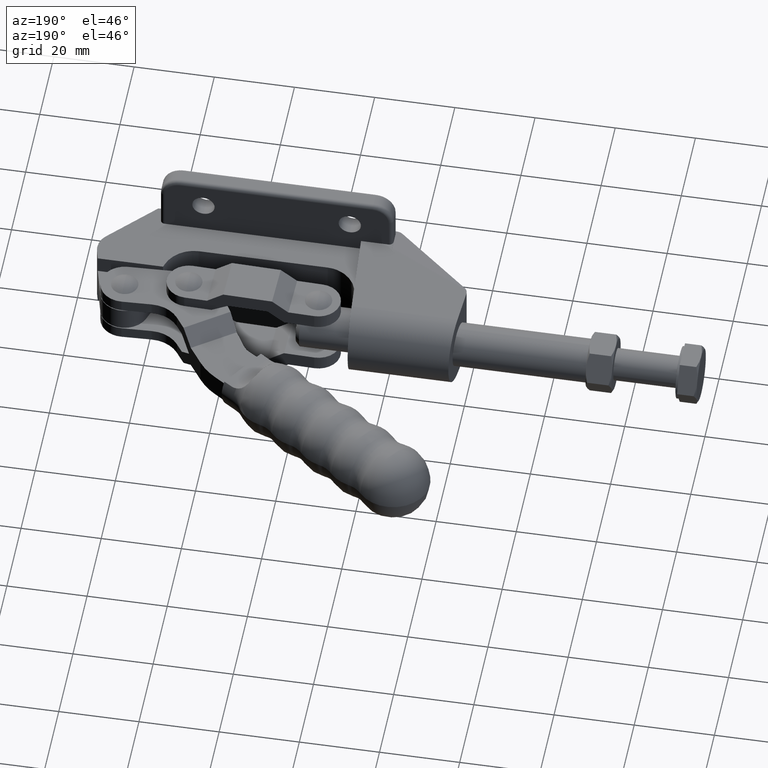
[diagram: clean part render]
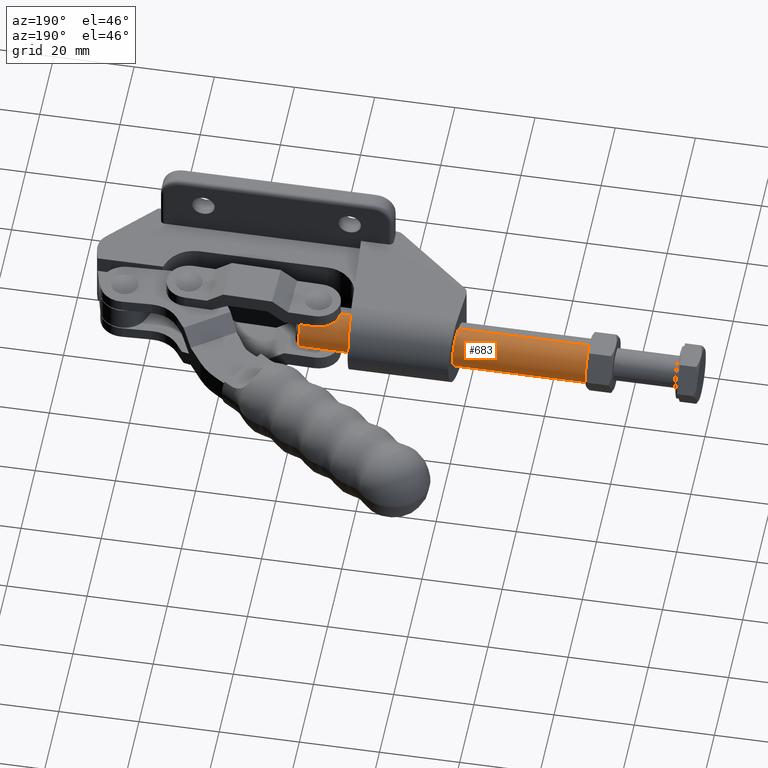
[diagram: same view with one face highlighted and labeled with its STEP entity id]
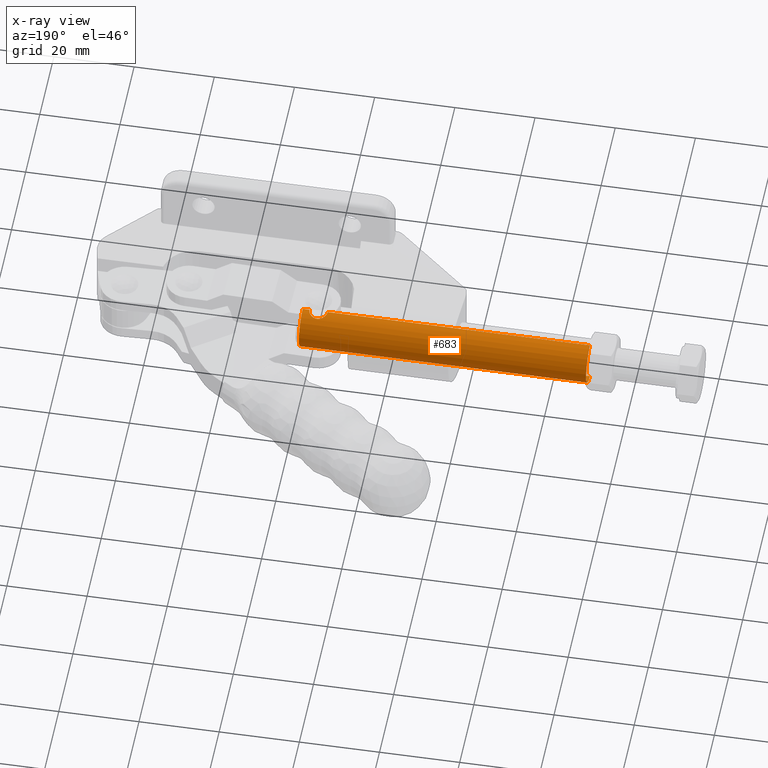
[diagram: x-ray of the same camera — body ghosted, the highlighted face saturated]
A machine part, auxiliary view. The second image highlights one B-rep face of the part: STEP entity #683.
The next image is the same camera in x-ray: the body ghosted, the highlighted face saturated — about 0% of this face is hidden behind the body in this view.
In plain terms, the highlighted cylindrical surface (edge-blend (fillet) strip) has radius 5.45 mm, axis along (1, -0, -0).
Its self-contained STEP definition (entity closure, byte-faithful):
#48 = EDGE_CURVE ( 'NONE', #2950, #908, #6460, .T. ) ;
#62 = VERTEX_POINT ( 'NONE', #3779 ) ;
#180 = CARTESIAN_POINT ( 'NONE',  ( 35.39458828699323300, 26.84990442505186800, 4.963912780160173500 ) ) ;
#219 = CARTESIAN_POINT ( 'NONE',  ( 37.73409878566524600, 25.19577018917615500, 5.424258299385357400 ) ) ;
#303 = CARTESIAN_POINT ( 'NONE',  ( 33.52603848838639800, 25.60477934969683000, -5.358381304546732300 ) ) ;
#311 = EDGE_CURVE ( 'NONE', #10263, #10708, #4171, .T. ) ;
#469 = CARTESIAN_POINT ( 'NONE',  ( -32.15528608250974700, 24.59999999999999800, 5.450000000000009100 ) ) ;
#481 = VECTOR ( 'NONE', #2211, 1000.000000000000000 ) ;
#497 = CARTESIAN_POINT ( 'NONE',  ( -47.57021391237644500, 24.59999999999999800, -5.449999999999988600 ) ) ;
#581 = DIRECTION ( 'NONE',  ( 1.000000000000000000, 2.035898835332777400E-016, -1.370268265540828000E-017 ) ) ;
#664 = EDGE_LOOP ( 'NONE', ( #9396, #4388, #11704, #2590, #5864, #8384, #852, #8783 ) ) ;
#683 = ADVANCED_FACE ( 'NONE', ( #6049 ), #10383, .T. ) ;
#852 = ORIENTED_EDGE ( 'NONE', *, *, #48, .T. ) ;
#899 = AXIS2_PLACEMENT_3D ( 'NONE', #10797, #5268, #11748 ) ;
#908 = VERTEX_POINT ( 'NONE', #8483 ) ;
#1007 = CARTESIAN_POINT ( 'NONE',  ( 33.29471391749024900, 24.59999999999999800, 5.449999999999998400 ) ) ;
#1066 = B_SPLINE_CURVE_WITH_KNOTS ( 'NONE', 3,
 ( #1007, #10271, #6621, #1082, #7534, #2013, #8474, #2937, #9395, #3844, #10311, #4790, #11261, #5721, #180, #6662, #1117, #7573, #2058, #8514, #2976, #9429, #3889, #10349, #4828, #11313, #5757, #219, #6702, #1164 ),
 .UNSPECIFIED., .F., .F.,
 ( 4, 2, 2, 2, 2, 2, 2, 2, 2, 2, 2, 2, 2, 2, 4 ),
 ( 0.0000000000000000000, 0.0004446908675682538100, 0.0008893817351365076200, 0.001334072602704761500, 0.001778763470273015200, 0.002668145205409516000, 0.003112836072977757000, 0.003557526940545997900, 0.004002217808114239300, 0.004446908675682479900, 0.004891599543250722100, 0.005336290410818962700, 0.005780981278387204100, 0.006225672145955444600, 0.007115053881091918700 ),
 .UNSPECIFIED. ) ;
#1082 = CARTESIAN_POINT ( 'NONE',  ( 33.36790161416733000, 25.18809556403967100, 5.420129474913927000 ) ) ;
#1117 = CARTESIAN_POINT ( 'NONE',  ( 35.84287479185864100, 26.83506136416304600, 4.970715951769165000 ) ) ;
#1121 = DIRECTION ( 'NONE',  ( 0.0000000000000000000, 0.0000000000000000000, -1.000000000000000000 ) ) ;
#1150 = CARTESIAN_POINT ( 'NONE',  ( 37.77978827740818700, 24.89841022205857600, -5.443788936240526500 ) ) ;
#1164 = CARTESIAN_POINT ( 'NONE',  ( 37.79471391749024900, 24.59999999999999400, 5.449999999999995700 ) ) ;
#1223 = VERTEX_POINT ( 'NONE', #5437 ) ;
#1571 = LINE ( 'NONE', #497, #11113 ) ;
#1595 = CARTESIAN_POINT ( 'NONE',  ( 33.75767562825308900, 25.97482155891260500, -5.275201697826050300 ) ) ;
#1875 = DIRECTION ( 'NONE',  ( 1.000000000000000000, -5.300053324277201600E-017, -1.819914153650359300E-016 ) ) ;
#2013 = CARTESIAN_POINT ( 'NONE',  ( 33.52566653395111700, 25.60382203875816700, 5.358526192273224400 ) ) ;
#2058 = CARTESIAN_POINT ( 'NONE',  ( 36.27453191224898200, 26.73351450530012100, 5.015420033960627000 ) ) ;
#2211 = DIRECTION ( 'NONE',  ( 1.000000000000000000, -5.300053324277201600E-017, -1.819914153650359300E-016 ) ) ;
#2254 = CARTESIAN_POINT ( 'NONE',  ( 33.29471391749023500, 24.75036397340202000, -5.450000000000003700 ) ) ;
#2300 = CARTESIAN_POINT ( 'NONE',  ( 36.91859078860556300, 26.38776216523258400, -5.149158630582057600 ) ) ;
#2378 = CIRCLE ( 'NONE', #899, 5.450000000000000200 ) ;
#2590 = ORIENTED_EDGE ( 'NONE', *, *, #5194, .T. ) ;
#2616 = VERTEX_POINT ( 'NONE', #10688 ) ;
#2746 = CARTESIAN_POINT ( 'NONE',  ( 37.03073880183753600, 26.29578290766546500, -5.180591340291229600 ) ) ;
#2879 = CARTESIAN_POINT ( 'NONE',  ( 34.41238647124355100, 26.54977731132645500, -5.090025448190267800 ) ) ;
#2937 = CARTESIAN_POINT ( 'NONE',  ( 33.75837551978592900, 25.97585501762330300, 5.274955767136515500 ) ) ;
#2950 = VERTEX_POINT ( 'NONE', #3608 ) ;
#2976 = CARTESIAN_POINT ( 'NONE',  ( 36.67704020730437300, 26.54976498292773000, 5.090028265693843100 ) ) ;
#3327 = CARTESIAN_POINT ( 'NONE',  ( 37.56411625958197200, 25.60314089618845300, -5.358659718345192500 ) ) ;
#3346 = CARTESIAN_POINT ( 'NONE',  ( 33.36824380996756600, 25.18928066350540700, -5.419991884936172800 ) ) ;
#3422 = VECTOR ( 'NONE', #6469, 1000.000000000000000 ) ;
#3458 = CARTESIAN_POINT ( 'NONE',  ( 33.59559334066742800, 25.73338834609166200, -5.332290139193606400 ) ) ;
#3608 = CARTESIAN_POINT ( 'NONE',  ( 37.79471391749024900, 24.59999999999999400, -5.450000000000004600 ) ) ;
#3779 = CARTESIAN_POINT ( 'NONE',  ( -32.15528608250974700, 24.59999999999999800, -5.449999999999991300 ) ) ;
#3844 = CARTESIAN_POINT ( 'NONE',  ( 34.16009212906420300, 26.39707703280169700, 5.149656199196818400 ) ) ;
#3889 = CARTESIAN_POINT ( 'NONE',  ( 37.03343828554247400, 26.29332612189905700, 5.181381661517114000 ) ) ;
#4171 = LINE ( 'NONE', #9283, #8795 ) ;
#4388 = ORIENTED_EDGE ( 'NONE', *, *, #311, .T. ) ;
#4398 = CARTESIAN_POINT ( 'NONE',  ( 33.29471391749024900, 24.59999999999999400, -5.450000000000003700 ) ) ;
#4552 = CARTESIAN_POINT ( 'NONE',  ( 34.05788228105220800, 26.29503988934924400, -5.180828737272972400 ) ) ;
#4790 = CARTESIAN_POINT ( 'NONE',  ( 34.81284482850446700, 26.73266627069664700, 5.015770126810635600 ) ) ;
#4828 = CARTESIAN_POINT ( 'NONE',  ( 37.33127257289506700, 25.97555611992717700, 5.275031467823068500 ) ) ;
#4962 = EDGE_CURVE ( 'NONE', #2950, #1223, #1571, .T. ) ;
#5194 = EDGE_CURVE ( 'NONE', #7622, #2616, #8351, .T. ) ;
#5268 = DIRECTION ( 'NONE',  ( -1.000000000000000000, 0.0000000000000000000, 1.819914153650349700E-016 ) ) ;
#5292 = DIRECTION ( 'NONE',  ( 1.000000000000000000, -5.300053324277201000E-017, -1.819914153650359300E-016 ) ) ;
#5381 = LINE ( 'NONE', #6817, #481 ) ;
#5437 = CARTESIAN_POINT ( 'NONE',  ( 39.49471391749024500, 24.59999999999999800, -5.450000000000004600 ) ) ;
#5682 = CARTESIAN_POINT ( 'NONE',  ( 37.79471391749024900, 24.59999999999999400, 5.449999999999995700 ) ) ;
#5721 = CARTESIAN_POINT ( 'NONE',  ( 35.24745700479024200, 26.83521632801023000, 4.970646812579031100 ) ) ;
#5757 = CARTESIAN_POINT ( 'NONE',  ( 37.56490437254633000, 25.60139531660900800, 5.358960950973983700 ) ) ;
#5864 = ORIENTED_EDGE ( 'NONE', *, *, #8320, .T. ) ;
#6049 = FACE_OUTER_BOUND ( 'NONE', #664, .T. ) ;
#6111 = CARTESIAN_POINT ( 'NONE',  ( -32.15528608250974700, 24.59999999999999800, 8.605670886099042500E-015 ) ) ;
#6333 = CARTESIAN_POINT ( 'NONE',  ( 37.79471391749024900, 24.59999999999999400, -5.450000000000004600 ) ) ;
#6354 = CARTESIAN_POINT ( 'NONE',  ( 33.85123784689645300, 26.08861255534283800, -5.243870640234572300 ) ) ;
#6460 = B_SPLINE_CURVE_WITH_KNOTS ( 'NONE', 3,
 ( #6333, #11833, #1150, #8476, #6810, #3327, #9915, #8056, #10092, #2746, #2300, #9503, #8428, #11245, #10073, #8224, #10195, #9297, #9369, #8664, #2879, #8227, #4552, #6354, #1595, #3458, #303, #6996, #3346, #7003, #2254, #4398 ),
 .UNSPECIFIED., .F., .F.,
 ( 4, 2, 2, 2, 2, 2, 2, 2, 2, 2, 2, 2, 2, 2, 2, 4 ),
 ( 0.007115053881091908300, 0.007559402318673060800, 0.008003750756254212500, 0.008448099193835365000, 0.008892447631416517500, 0.009336796068997670100, 0.009781144506578822600, 0.01022549294415997500, 0.01066984138174112800, 0.01155853825690345200, 0.01200288669448461500, 0.01244723513206577800, 0.01289158356964693900, 0.01333593200722810200, 0.01378028044480926500, 0.01422462888239042800 ),
 .UNSPECIFIED. ) ;
#6469 = DIRECTION ( 'NONE',  ( 1.000000000000000000, -5.300053324277201600E-017, -1.819914153650359300E-016 ) ) ;
#6621 = CARTESIAN_POINT ( 'NONE',  ( 33.30965534286940500, 24.89812977770586900, 5.443783477777096800 ) ) ;
#6662 = CARTESIAN_POINT ( 'NONE',  ( 35.69196090007863400, 26.85009465421317600, 4.963826553978972100 ) ) ;
#6702 = CARTESIAN_POINT ( 'NONE',  ( 37.79471391749024900, 24.89644727576063900, 5.449999999999994800 ) ) ;
#6810 = CARTESIAN_POINT ( 'NONE',  ( 37.67784029101371600, 25.33078680299381000, -5.402543501277079100 ) ) ;
#6817 = CARTESIAN_POINT ( 'NONE',  ( -47.57021391237644500, 24.59999999999999800, -5.449999999999988600 ) ) ;
#6996 = CARTESIAN_POINT ( 'NONE',  ( 33.41131976511746200, 25.33024750616924000, -5.402644752917475500 ) ) ;
#7003 = CARTESIAN_POINT ( 'NONE',  ( 33.30992420285095100, 24.89998126718776200, -5.443672930337731600 ) ) ;
#7032 = DIRECTION ( 'NONE',  ( 0.0000000000000000000, 1.000000000000000000, 0.0000000000000000000 ) ) ;
#7454 = AXIS2_PLACEMENT_3D ( 'NONE', #11165, #5292, #1121 ) ;
#7534 = CARTESIAN_POINT ( 'NONE',  ( 33.41199642843442800, 25.33193383194674200, 5.402382298988712300 ) ) ;
#7573 = CARTESIAN_POINT ( 'NONE',  ( 36.13304262037966900, 26.77675642779226100, 4.996523574327640400 ) ) ;
#7595 = EDGE_CURVE ( 'NONE', #10708, #7622, #1066, .T. ) ;
#7622 = VERTEX_POINT ( 'NONE', #5682 ) ;
#8056 = CARTESIAN_POINT ( 'NONE',  ( 37.33103317816001300, 25.97578557937109200, -5.274955335721330100 ) ) ;
#8224 = CARTESIAN_POINT ( 'NONE',  ( 35.84442067621951400, 26.83485811733981300, -4.970808132846202400 ) ) ;
#8227 = CARTESIAN_POINT ( 'NONE',  ( 34.17000807649386500, 26.38717118934292200, -5.149369841735064000 ) ) ;
#8320 = EDGE_CURVE ( 'NONE', #2616, #1223, #2378, .T. ) ;
#8351 = LINE ( 'NONE', #11114, #3422 ) ;
#8384 = ORIENTED_EDGE ( 'NONE', *, *, #4962, .F. ) ;
#8419 = CARTESIAN_POINT ( 'NONE',  ( 33.29471391749024900, 24.59999999999999800, 5.449999999999998400 ) ) ;
#8428 = CARTESIAN_POINT ( 'NONE',  ( 36.54613301572251100, 26.62021018245090800, -5.062113255199139200 ) ) ;
#8474 = CARTESIAN_POINT ( 'NONE',  ( 33.59498003789442300, 25.73248386274963600, 5.332505571996870600 ) ) ;
#8476 = CARTESIAN_POINT ( 'NONE',  ( 37.72108695325690100, 25.18992072702987200, -5.419952045801175600 ) ) ;
#8483 = CARTESIAN_POINT ( 'NONE',  ( 33.29471391749024900, 24.59999999999999400, -5.450000000000003700 ) ) ;
#8514 = CARTESIAN_POINT ( 'NONE',  ( 36.54840034573927500, 26.61919092795812200, 5.062528050078462600 ) ) ;
#8615 = EDGE_CURVE ( 'NONE', #62, #908, #5381, .T. ) ;
#8664 = CARTESIAN_POINT ( 'NONE',  ( 34.54344028184663500, 26.62027187603972000, -5.062087903098486700 ) ) ;
#8783 = ORIENTED_EDGE ( 'NONE', *, *, #8615, .F. ) ;
#8795 = VECTOR ( 'NONE', #1875, 1000.000000000000000 ) ;
#8819 = DIRECTION ( 'NONE',  ( 1.000000000000000000, -5.300053324277201600E-017, -1.819914153650359300E-016 ) ) ;
#9283 = CARTESIAN_POINT ( 'NONE',  ( -47.57021391237644500, 24.59999999999999800, 5.450000000000010800 ) ) ;
#9297 = CARTESIAN_POINT ( 'NONE',  ( 35.24860210263700100, 26.85006590526115000, -4.963839585162482100 ) ) ;
#9369 = CARTESIAN_POINT ( 'NONE',  ( 34.94990332884819400, 26.78972366974634100, -4.992247972347222200 ) ) ;
#9395 = CARTESIAN_POINT ( 'NONE',  ( 33.85217419636023100, 26.08958052219374600, 5.243580463370268100 ) ) ;
#9396 = ORIENTED_EDGE ( 'NONE', *, *, #10450, .T. ) ;
#9429 = CARTESIAN_POINT ( 'NONE',  ( 36.91914207688569100, 26.38737056871715600, 5.149298756558721400 ) ) ;
#9503 = CARTESIAN_POINT ( 'NONE',  ( 36.67712538881096400, 26.54968599421650300, -5.090054291094625100 ) ) ;
#9915 = CARTESIAN_POINT ( 'NONE',  ( 37.49352937014365500, 25.73394920210054300, -5.332175818680017400 ) ) ;
#10073 = CARTESIAN_POINT ( 'NONE',  ( 36.13465096940899500, 26.77632470478122400, -4.996712426943193300 ) ) ;
#10092 = CARTESIAN_POINT ( 'NONE',  ( 37.23803171166502300, 26.08883325955620000, -5.243813672344782800 ) ) ;
#10195 = CARTESIAN_POINT ( 'NONE',  ( 35.69352036059908800, 26.84996696391700500, -4.963884432840202100 ) ) ;
#10263 = VERTEX_POINT ( 'NONE', #469 ) ;
#10271 = CARTESIAN_POINT ( 'NONE',  ( 33.29471391749024900, 24.75047984898324700, 5.449999999999998400 ) ) ;
#10311 = CARTESIAN_POINT ( 'NONE',  ( 34.40788200208351800, 26.56359474903371900, 5.085435793544146300 ) ) ;
#10349 = CARTESIAN_POINT ( 'NONE',  ( 37.23905525073151100, 26.08756883726718500, 5.244159439967768700 ) ) ;
#10383 = CYLINDRICAL_SURFACE ( 'NONE', #7454, 5.450000000000000200 ) ;
#10450 = EDGE_CURVE ( 'NONE', #62, #10263, #11537, .T. ) ;
#10688 = CARTESIAN_POINT ( 'NONE',  ( 39.49471391749024500, 24.59999999999999800, 5.449999999999995700 ) ) ;
#10708 = VERTEX_POINT ( 'NONE', #8419 ) ;
#10797 = CARTESIAN_POINT ( 'NONE',  ( 39.49471391749024500, 24.59999999999999400, -4.434014024805782900E-015 ) ) ;
#11113 = VECTOR ( 'NONE', #8819, 1000.000000000000000 ) ;
#11114 = CARTESIAN_POINT ( 'NONE',  ( -47.57021391237644500, 24.59999999999999800, 5.450000000000010800 ) ) ;
#11165 = CARTESIAN_POINT ( 'NONE',  ( -47.57021391237644500, 24.59999999999999800, 1.141105541960636400E-014 ) ) ;
#11245 = CARTESIAN_POINT ( 'NONE',  ( 36.27489415136819400, 26.73328999848512000, -5.015507309545522900 ) ) ;
#11261 = CARTESIAN_POINT ( 'NONE',  ( 34.95625713846661100, 26.77675729569756800, 4.996523735962139100 ) ) ;
#11313 = CARTESIAN_POINT ( 'NONE',  ( 37.49450622602888900, 25.73236761779669400, 5.332528031221040800 ) ) ;
#11369 = AXIS2_PLACEMENT_3D ( 'NONE', #6111, #581, #7032 ) ;
#11537 = CIRCLE ( 'NONE', #11369, 5.450000000000000200 ) ;
#11704 = ORIENTED_EDGE ( 'NONE', *, *, #7595, .T. ) ;
#11748 = DIRECTION ( 'NONE',  ( 0.0000000000000000000, 0.0000000000000000000, 1.000000000000000000 ) ) ;
#11833 = CARTESIAN_POINT ( 'NONE',  ( 37.79471391749026300, 24.74810949967307000, -5.450000000000004600 ) ) ;